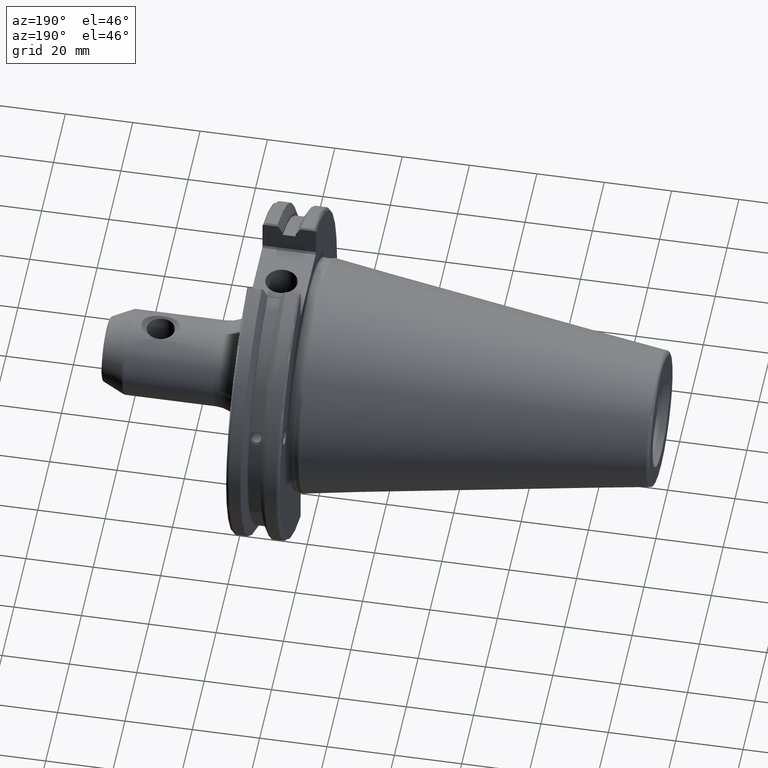
[diagram: clean part render]
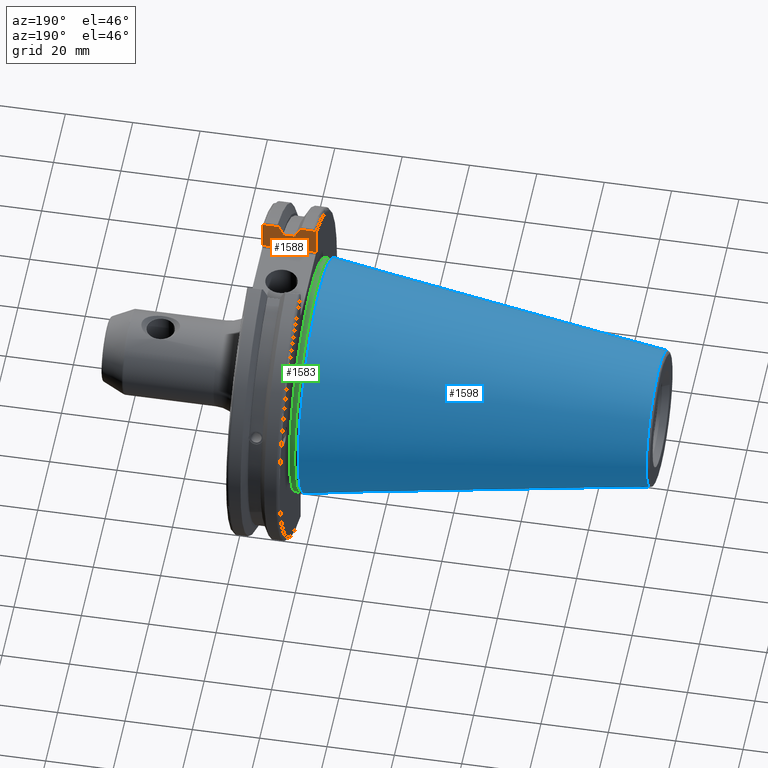
[diagram: same view with three faces highlighted in distinct colors, each labeled with its STEP entity id]
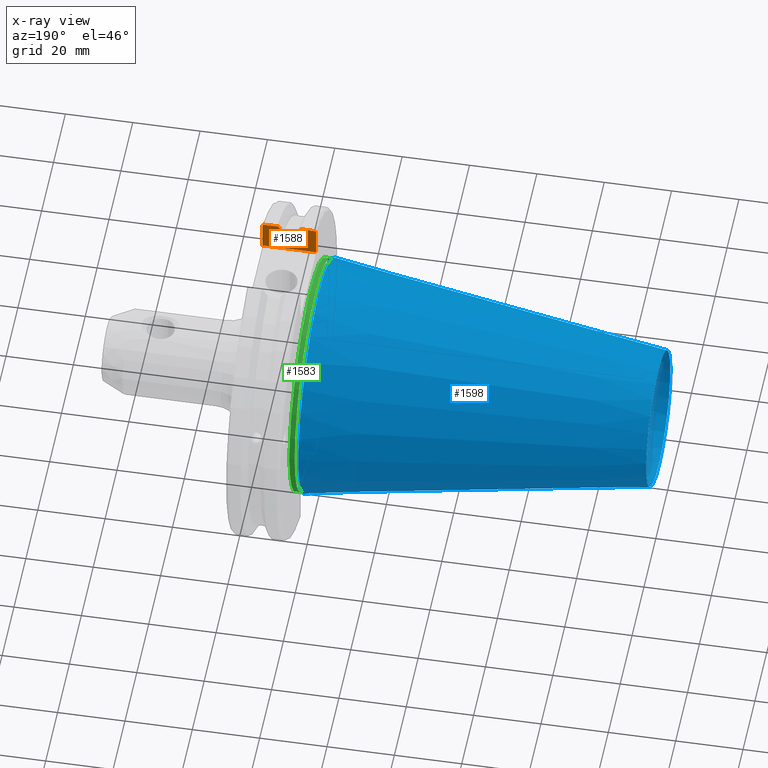
[diagram: x-ray of the same camera — body ghosted, the three highlighted faces saturated]
A machine part, auxiliary view with three faces highlighted in distinct colors.
The next image is the same camera in x-ray (body ghosted, the three faces saturated) — at least one of them is partly hidden behind the body in this view.
Their STEP definitions:

[orange] entity #1588 — the highlighted planar face has unit normal (-0, -1, 0).
#18=(
BOUNDED_CURVE()
B_SPLINE_CURVE(2,(#2833,#2834,#2835),.UNSPECIFIED.,.F.,.F.)
B_SPLINE_CURVE_WITH_KNOTS((3,3),(0.0558332664505639,0.331657177124505),
 .UNSPECIFIED.)
CURVE()
GEOMETRIC_REPRESENTATION_ITEM()
RATIONAL_B_SPLINE_CURVE((1.00012873636973,1.00038235575037,1.))
REPRESENTATION_ITEM('')
);
#24=(
BOUNDED_CURVE()
B_SPLINE_CURVE(2,(#3214,#3215,#3216),.UNSPECIFIED.,.F.,.F.)
B_SPLINE_CURVE_WITH_KNOTS((3,3),(0.,0.275823910674838),.UNSPECIFIED.)
CURVE()
GEOMETRIC_REPRESENTATION_ITEM()
RATIONAL_B_SPLINE_CURVE((1.,1.00038235573924,1.00012873636598))
REPRESENTATION_ITEM('')
);
#93=PLANE('',#1760);
#241=FACE_OUTER_BOUND('',#350,.T.);
#350=EDGE_LOOP('',(#1321,#1322,#1323,#1324,#1325,#1326,#1327,#1328,#1329,
#1330,#1331,#1332));
#429=B_SPLINE_CURVE_WITH_KNOTS('',3,(#3177,#3178,#3179,#3180,#3181,#3182),
 .UNSPECIFIED.,.F.,.F.,(4,2,4),(0.452859694247731,0.491383469061936,0.506034728678978),
 .UNSPECIFIED.);
#432=B_SPLINE_CURVE_WITH_KNOTS('',3,(#3205,#3206,#3207,#3208,#3209,#3210),
 .UNSPECIFIED.,.F.,.F.,(4,2,4),(0.0976892167532858,0.112000071948292,0.150881870548587),
 .UNSPECIFIED.);
#451=LINE('',#2520,#546);
#487=LINE('',#3087,#582);
#505=LINE('',#3203,#600);
#506=LINE('',#3212,#601);
#507=LINE('',#3218,#602);
#508=LINE('',#3220,#603);
#509=LINE('',#3221,#604);
#510=LINE('',#3222,#605);
#546=VECTOR('',#1907,10.);
#582=VECTOR('',#2071,10.);
#600=VECTOR('',#2109,10.);
#601=VECTOR('',#2110,10.);
#602=VECTOR('',#2111,10.);
#603=VECTOR('',#2112,10.);
#604=VECTOR('',#2113,10.);
#605=VECTOR('',#2114,10.);
#665=VERTEX_POINT('',#2517);
#666=VERTEX_POINT('',#2519);
#704=VERTEX_POINT('',#2828);
#705=VERTEX_POINT('',#2832);
#741=VERTEX_POINT('',#3083);
#743=VERTEX_POINT('',#3086);
#764=VERTEX_POINT('',#3176);
#767=VERTEX_POINT('',#3204);
#768=VERTEX_POINT('',#3211);
#769=VERTEX_POINT('',#3213);
#770=VERTEX_POINT('',#3217);
#771=VERTEX_POINT('',#3219);
#838=EDGE_CURVE('',#665,#666,#451,.T.);
#887=EDGE_CURVE('',#704,#705,#18,.T.);
#938=EDGE_CURVE('',#741,#743,#487,.T.);
#966=EDGE_CURVE('',#666,#764,#429,.T.);
#970=EDGE_CURVE('',#743,#665,#505,.T.);
#971=EDGE_CURVE('',#767,#741,#432,.T.);
#972=EDGE_CURVE('',#768,#767,#506,.T.);
#973=EDGE_CURVE('',#769,#768,#24,.T.);
#974=EDGE_CURVE('',#770,#769,#507,.T.);
#975=EDGE_CURVE('',#771,#770,#508,.T.);
#976=EDGE_CURVE('',#705,#771,#509,.T.);
#977=EDGE_CURVE('',#764,#704,#510,.T.);
#1321=ORIENTED_EDGE('',*,*,#966,.F.);
#1322=ORIENTED_EDGE('',*,*,#838,.F.);
#1323=ORIENTED_EDGE('',*,*,#970,.F.);
#1324=ORIENTED_EDGE('',*,*,#938,.F.);
#1325=ORIENTED_EDGE('',*,*,#971,.F.);
#1326=ORIENTED_EDGE('',*,*,#972,.F.);
#1327=ORIENTED_EDGE('',*,*,#973,.F.);
#1328=ORIENTED_EDGE('',*,*,#974,.F.);
#1329=ORIENTED_EDGE('',*,*,#975,.F.);
#1330=ORIENTED_EDGE('',*,*,#976,.F.);
#1331=ORIENTED_EDGE('',*,*,#887,.F.);
#1332=ORIENTED_EDGE('',*,*,#977,.F.);
#1588=ADVANCED_FACE('',(#241),#93,.F.);
#1760=AXIS2_PLACEMENT_3D('',#3202,#2107,#2108);
#1907=DIRECTION('',(0.,0.,1.));
#2071=DIRECTION('',(0.,0.,-1.));
#2107=DIRECTION('center_axis',(-1.31581988103722E-16,-1.,0.));
#2108=DIRECTION('ref_axis',(1.,-1.31581988103722E-16,0.));
#2109=DIRECTION('',(1.,-1.31581988103722E-16,0.));
#2110=DIRECTION('',(-1.,1.31581988103722E-16,0.));
#2111=DIRECTION('',(0.,0.,1.));
#2112=DIRECTION('',(-1.,0.,0.));
#2113=DIRECTION('',(0.,0.,-1.));
#2114=DIRECTION('',(-1.,1.31581988103722E-16,0.));
#2517=CARTESIAN_POINT('',(19.05,-12.95,38.219));
#2519=CARTESIAN_POINT('',(19.05,-12.95,46.4407434937254));
#2520=CARTESIAN_POINT('',(19.05,-12.95,18.8595));
#2828=CARTESIAN_POINT('',(14.3747103943757,-12.95,46.9780755322917));
#2832=CARTESIAN_POINT('',(13.042,-12.95,44.5791147973604));
#2833=CARTESIAN_POINT('Ctrl Pts',(14.3747103943757,-12.95,46.9780755322917));
#2834=CARTESIAN_POINT('Ctrl Pts',(13.6908955094594,-12.95,45.7494966802471));
#2835=CARTESIAN_POINT('Ctrl Pts',(13.042,-12.95,44.5791147973604));
#3083=CARTESIAN_POINT('',(3.175,-12.95,46.4407434937254));
#3086=CARTESIAN_POINT('',(3.175,-12.95,38.219));
#3087=CARTESIAN_POINT('',(3.175,-12.95,18.8595));
#3176=CARTESIAN_POINT('',(18.9055020570566,-12.95,46.9780755322918));
#3177=CARTESIAN_POINT('Ctrl Pts',(19.05,-12.95,46.4407434937254));
#3178=CARTESIAN_POINT('Ctrl Pts',(19.05,-12.95,46.5691560764394));
#3179=CARTESIAN_POINT('Ctrl Pts',(19.0209992543299,-12.95,46.7204975987179));
#3180=CARTESIAN_POINT('Ctrl Pts',(18.9549831813775,-12.95,46.8849952622217));
#3181=CARTESIAN_POINT('Ctrl Pts',(18.9322353702005,-12.95,46.9322596399785));
#3182=CARTESIAN_POINT('Ctrl Pts',(18.9055020570566,-12.95,46.9780755322918));
#3202=CARTESIAN_POINT('Origin',(3.175,-12.95,37.719));
#3203=CARTESIAN_POINT('',(10.63125,-12.95,38.219));
#3204=CARTESIAN_POINT('',(3.31949794294344,-12.95,46.9780755322918));
#3205=CARTESIAN_POINT('Ctrl Pts',(3.31949794294344,-12.95,46.9780755322918));
#3206=CARTESIAN_POINT('Ctrl Pts',(3.29341556483839,-12.95,46.9333752207329));
#3207=CARTESIAN_POINT('Ctrl Pts',(3.27115672912336,-12.95,46.887363294568));
#3208=CARTESIAN_POINT('Ctrl Pts',(3.20453530071253,-12.95,46.7230464903732));
#3209=CARTESIAN_POINT('Ctrl Pts',(3.175,-12.95,46.5703494890597));
#3210=CARTESIAN_POINT('Ctrl Pts',(3.175,-12.95,46.4407434937254));
#3211=CARTESIAN_POINT('',(7.87928960562423,-12.95,46.9780755322918));
#3212=CARTESIAN_POINT('',(5.38794548297563,-12.95,46.9780755322918));
#3213=CARTESIAN_POINT('',(9.21200000000001,-12.95,44.5791147973604));
#3214=CARTESIAN_POINT('Ctrl Pts',(9.21200000000001,-12.95,44.5791147973604));
#3215=CARTESIAN_POINT('Ctrl Pts',(8.56310449055921,-12.95,45.7494966802136));
#3216=CARTESIAN_POINT('Ctrl Pts',(7.87928960562423,-12.95,46.9780755322918));
#3217=CARTESIAN_POINT('',(9.21200000000001,-12.95,43.7678716897452));
#3218=CARTESIAN_POINT('',(9.212,-12.95,18.8595));
#3219=CARTESIAN_POINT('',(13.042,-12.95,43.7678716897452));
#3220=CARTESIAN_POINT('',(11.127,-12.95,43.7678716897452));
#3221=CARTESIAN_POINT('',(13.042,-12.95,18.8595));
#3222=CARTESIAN_POINT('',(16.8515545170244,-12.95,46.9780755322918));

[blue] entity #1598 — the highlighted conical surface has half-angle 8.297 deg.
#49=CONICAL_SURFACE('',#1778,27.5166666666666,0.14481249823894);
#175=CIRCLE('',#1772,20.233121911427);
#176=CIRCLE('',#1773,20.233121911427);
#180=CIRCLE('',#1779,34.925);
#251=FACE_OUTER_BOUND('',#361,.T.);
#361=EDGE_LOOP('',(#1380,#1381,#1382,#1383,#1384));
#517=LINE('',#3319,#612);
#612=VECTOR('',#2159,27.5166666666666);
#782=VERTEX_POINT('',#3306);
#783=VERTEX_POINT('',#3307);
#786=VERTEX_POINT('',#3317);
#997=EDGE_CURVE('',#782,#783,#175,.T.);
#998=EDGE_CURVE('',#783,#782,#176,.T.);
#1002=EDGE_CURVE('',#786,#786,#180,.T.);
#1003=EDGE_CURVE('',#786,#783,#517,.T.);
#1380=ORIENTED_EDGE('',*,*,#1002,.F.);
#1381=ORIENTED_EDGE('',*,*,#1003,.T.);
#1382=ORIENTED_EDGE('',*,*,#997,.F.);
#1383=ORIENTED_EDGE('',*,*,#998,.F.);
#1384=ORIENTED_EDGE('',*,*,#1003,.F.);
#1598=ADVANCED_FACE('',(#251),#49,.T.);
#1772=AXIS2_PLACEMENT_3D('',#3308,#2143,#2144);
#1773=AXIS2_PLACEMENT_3D('',#3309,#2145,#2146);
#1778=AXIS2_PLACEMENT_3D('',#3316,#2155,#2156);
#1779=AXIS2_PLACEMENT_3D('',#3318,#2157,#2158);
#2143=DIRECTION('center_axis',(-1.,0.,0.));
#2144=DIRECTION('ref_axis',(0.,-1.,3.06161699786838E-17));
#2145=DIRECTION('center_axis',(-1.,0.,0.));
#2146=DIRECTION('ref_axis',(0.,-1.,3.06161699786838E-17));
#2155=DIRECTION('center_axis',(1.,0.,0.));
#2156=DIRECTION('ref_axis',(0.,1.,0.));
#2157=DIRECTION('center_axis',(1.,0.,0.));
#2158=DIRECTION('ref_axis',(0.,0.,-1.));
#2159=DIRECTION('',(-0.989532981063281,0.144306893071729,1.76724974695192E-17));
#3306=CARTESIAN_POINT('',(-100.744306893072,-2.47784279855872E-15,20.233121911427));
#3307=CARTESIAN_POINT('',(-100.744306893072,-20.233121911427,-2.47784279855872E-15));
#3308=CARTESIAN_POINT('Origin',(-100.744306893072,0.,-3.09730349819841E-15));
#3309=CARTESIAN_POINT('Origin',(-100.744306893072,0.,-3.09730349819841E-15));
#3316=CARTESIAN_POINT('Origin',(-50.8,0.,0.));
#3317=CARTESIAN_POINT('',(-8.88178419700125E-15,-34.925,-4.27707894602213E-15));
#3318=CARTESIAN_POINT('Origin',(0.,0.,0.));
#3319=CARTESIAN_POINT('',(-50.8,-27.5166666666666,-3.3698197756538E-15));

[green] entity #1583 — the highlighted cylindrical surface (bore or boss wall) has radius 34.625 mm, axis along (1, 0, 0).
#163=CIRCLE('',#1745,34.625);
#166=CIRCLE('',#1748,34.625);
#169=CIRCLE('',#1753,34.625);
#236=FACE_OUTER_BOUND('',#345,.T.);
#345=EDGE_LOOP('',(#1288,#1289,#1290,#1291,#1292));
#497=LINE('',#3109,#592);
#592=VECTOR('',#2085,34.625);
#738=VERTEX_POINT('',#3075);
#739=VERTEX_POINT('',#3076);
#753=VERTEX_POINT('',#3108);
#933=EDGE_CURVE('',#738,#739,#163,.T.);
#936=EDGE_CURVE('',#739,#738,#166,.T.);
#949=EDGE_CURVE('',#738,#753,#497,.T.);
#950=EDGE_CURVE('',#753,#753,#169,.T.);
#1288=ORIENTED_EDGE('',*,*,#933,.F.);
#1289=ORIENTED_EDGE('',*,*,#949,.T.);
#1290=ORIENTED_EDGE('',*,*,#950,.T.);
#1291=ORIENTED_EDGE('',*,*,#949,.F.);
#1292=ORIENTED_EDGE('',*,*,#936,.F.);
#1530=CYLINDRICAL_SURFACE('',#1752,34.625);
#1583=ADVANCED_FACE('',(#236),#1530,.T.);
#1745=AXIS2_PLACEMENT_3D('',#3077,#2059,#2060);
#1748=AXIS2_PLACEMENT_3D('',#3081,#2065,#2066);
#1752=AXIS2_PLACEMENT_3D('',#3107,#2083,#2084);
#1753=AXIS2_PLACEMENT_3D('',#3110,#2086,#2087);
#2059=DIRECTION('center_axis',(1.,0.,0.));
#2060=DIRECTION('ref_axis',(0.,-1.,1.83697019872103E-16));
#2065=DIRECTION('center_axis',(1.,0.,0.));
#2066=DIRECTION('ref_axis',(0.,-1.,1.83697019872103E-16));
#2083=DIRECTION('center_axis',(1.,0.,0.));
#2084=DIRECTION('ref_axis',(0.,1.,0.));
#2085=DIRECTION('',(-1.,0.,0.));
#2086=DIRECTION('center_axis',(1.,0.,0.));
#2087=DIRECTION('ref_axis',(0.,0.,-1.));
#3075=CARTESIAN_POINT('',(2.675,-34.625,-4.24033954204771E-15));
#3076=CARTESIAN_POINT('',(2.675,-4.24033954204771E-15,34.625));
#3077=CARTESIAN_POINT('Origin',(2.675,0.,0.));
#3081=CARTESIAN_POINT('Origin',(2.675,0.,0.));
#3107=CARTESIAN_POINT('Origin',(2.14730762113533,0.,0.));
#3108=CARTESIAN_POINT('',(1.11961524227064,-34.625,-4.24033954204771E-15));
#3109=CARTESIAN_POINT('',(2.14730762113533,-34.625,-4.24033954204771E-15));
#3110=CARTESIAN_POINT('Origin',(1.11961524227064,0.,0.));